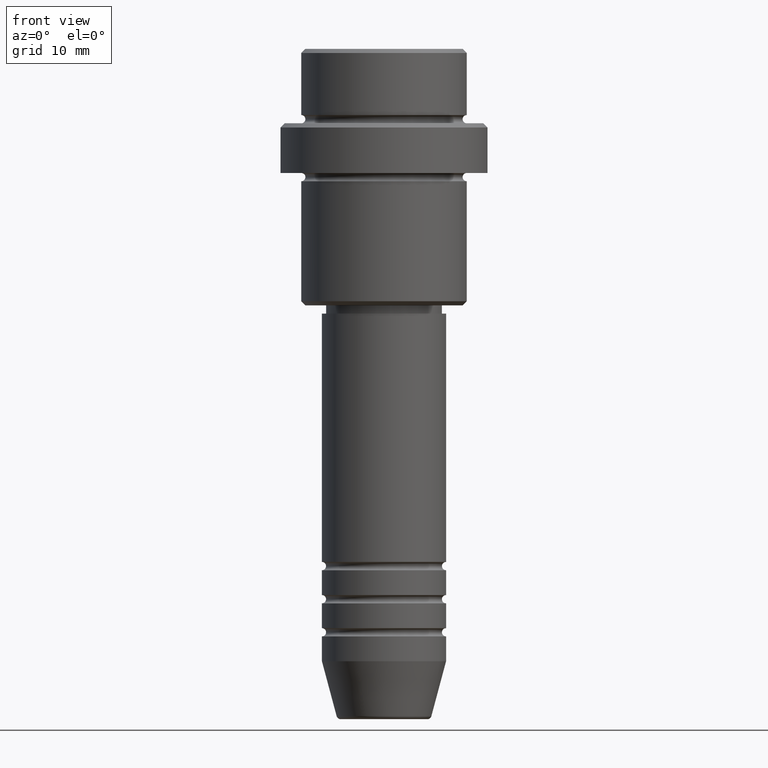
[diagram: clean part render]
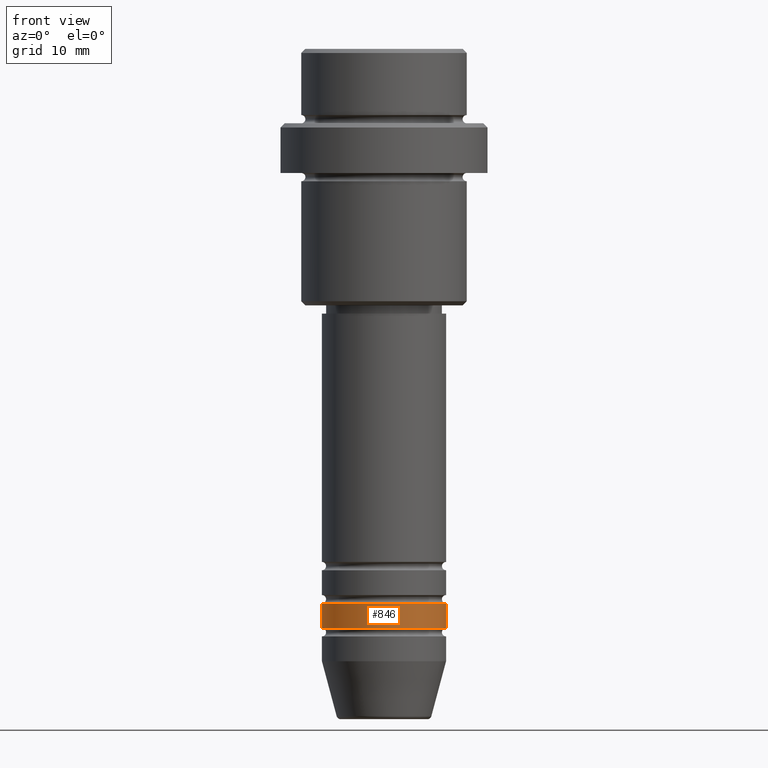
[diagram: same view with one face highlighted and labeled with its STEP entity id]
A machine part, front view. The second image highlights one B-rep face of the part: STEP entity #846.
In plain terms, the highlighted cylindrical surface (partial cylindrical patch) has radius 7.5 mm, axis along (-0, -0, 1).
Its self-contained STEP definition (entity closure, byte-faithful):
#5 = AXIS2_PLACEMENT_3D ( 'NONE', #1004, #448, #111 ) ;
#7 = CIRCLE ( 'NONE', #372, 7.500000000000000000 ) ;
#18 = ORIENTED_EDGE ( 'NONE', *, *, #703, .F. ) ;
#111 = DIRECTION ( 'NONE',  ( 1.000000000000000000, 0.000000000000000000, 0.000000000000000000 ) ) ;
#228 = VERTEX_POINT ( 'NONE', #426 ) ;
#269 = DIRECTION ( 'NONE',  ( -0.000000000000000000, -0.000000000000000000, 1.000000000000000000 ) ) ;
#277 = DIRECTION ( 'NONE',  ( -0.000000000000000000, -0.000000000000000000, 1.000000000000000000 ) ) ;
#315 = CARTESIAN_POINT ( 'NONE',  ( 7.500000000000000000, 0.000000000000000000, 0.000000000000000000 ) ) ;
#329 = ORIENTED_EDGE ( 'NONE', *, *, #734, .T. ) ;
#372 = AXIS2_PLACEMENT_3D ( 'NONE', #1023, #277, #828 ) ;
#389 = DIRECTION ( 'NONE',  ( 1.000000000000000000, 0.000000000000000000, 0.000000000000000000 ) ) ;
#426 = CARTESIAN_POINT ( 'NONE',  ( -7.500000000000000000, 9.184850993605147944E-16, -69.99999999999988631 ) ) ;
#448 = DIRECTION ( 'NONE',  ( -0.000000000000000000, -0.000000000000000000, 1.000000000000000000 ) ) ;
#521 = DIRECTION ( 'NONE',  ( -0.000000000000000000, -0.000000000000000000, 1.000000000000000000 ) ) ;
#636 = CIRCLE ( 'NONE', #873, 7.500000000000000000 ) ;
#643 = CARTESIAN_POINT ( 'NONE',  ( -7.500000000000000000, 9.184850993605147944E-16, 0.000000000000000000 ) ) ;
#649 = VERTEX_POINT ( 'NONE', #1130 ) ;
#696 = FACE_OUTER_BOUND ( 'NONE', #1160, .T. ) ;
#703 = EDGE_CURVE ( 'NONE', #228, #649, #869, .T. ) ;
#706 = VERTEX_POINT ( 'NONE', #1195 ) ;
#734 = EDGE_CURVE ( 'NONE', #933, #706, #864, .T. ) ;
#759 = DIRECTION ( 'NONE',  ( -0.000000000000000000, -0.000000000000000000, 1.000000000000000000 ) ) ;
#795 = CYLINDRICAL_SURFACE ( 'NONE', #5, 7.500000000000000000 ) ;
#799 = CARTESIAN_POINT ( 'NONE',  ( 7.500000000000000000, 0.000000000000000000, -69.99999999999988631 ) ) ;
#820 = CARTESIAN_POINT ( 'NONE',  ( 0.000000000000000000, 0.000000000000000000, -69.99999999999988631 ) ) ;
#828 = DIRECTION ( 'NONE',  ( 1.000000000000000000, 0.000000000000000000, 0.000000000000000000 ) ) ;
#846 = ADVANCED_FACE ( 'NONE', ( #696 ), #795, .T. ) ;
#864 = LINE ( 'NONE', #315, #907 ) ;
#869 = LINE ( 'NONE', #643, #1396 ) ;
#873 = AXIS2_PLACEMENT_3D ( 'NONE', #820, #269, #389 ) ;
#907 = VECTOR ( 'NONE', #759, 1000.000000000000000 ) ;
#933 = VERTEX_POINT ( 'NONE', #799 ) ;
#992 = EDGE_CURVE ( 'NONE', #649, #706, #7, .T. ) ;
#1004 = CARTESIAN_POINT ( 'NONE',  ( 0.000000000000000000, 0.000000000000000000, 0.000000000000000000 ) ) ;
#1023 = CARTESIAN_POINT ( 'NONE',  ( 0.000000000000000000, 0.000000000000000000, -66.99999999999988631 ) ) ;
#1051 = ORIENTED_EDGE ( 'NONE', *, *, #992, .F. ) ;
#1090 = EDGE_CURVE ( 'NONE', #228, #933, #636, .T. ) ;
#1130 = CARTESIAN_POINT ( 'NONE',  ( -7.500000000000000000, 9.184850993605147944E-16, -66.99999999999988631 ) ) ;
#1146 = ORIENTED_EDGE ( 'NONE', *, *, #1090, .T. ) ;
#1160 = EDGE_LOOP ( 'NONE', ( #18, #1146, #329, #1051 ) ) ;
#1195 = CARTESIAN_POINT ( 'NONE',  ( 7.500000000000000000, 0.000000000000000000, -66.99999999999988631 ) ) ;
#1396 = VECTOR ( 'NONE', #521, 1000.000000000000000 ) ;